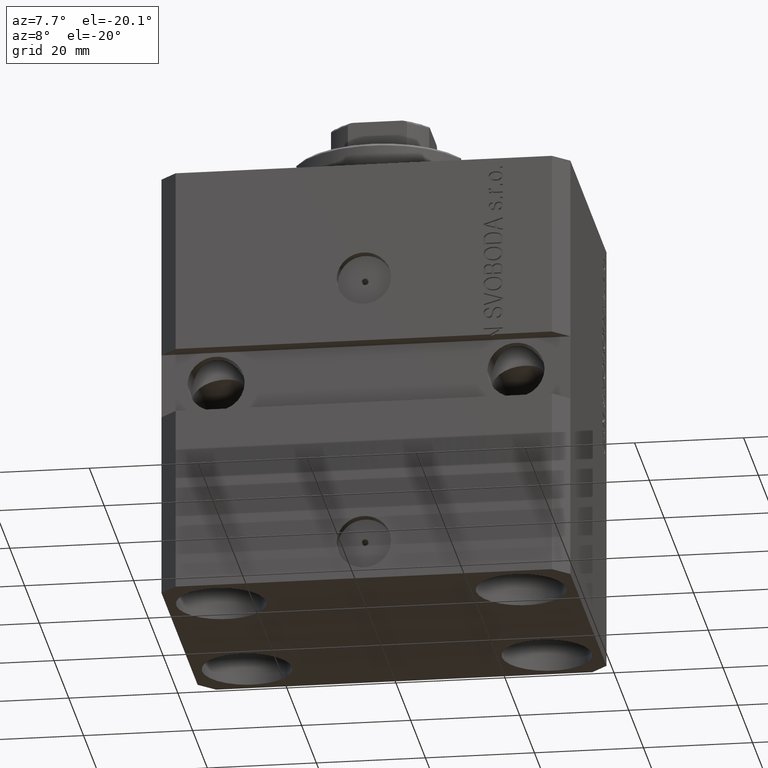
[diagram: clean part render]
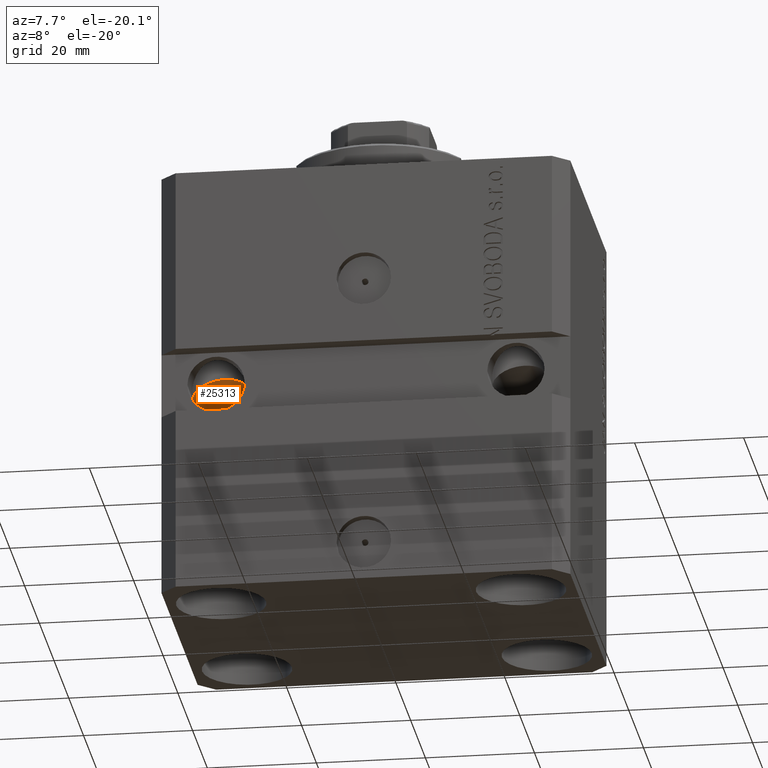
[diagram: same view with one face highlighted and labeled with its STEP entity id]
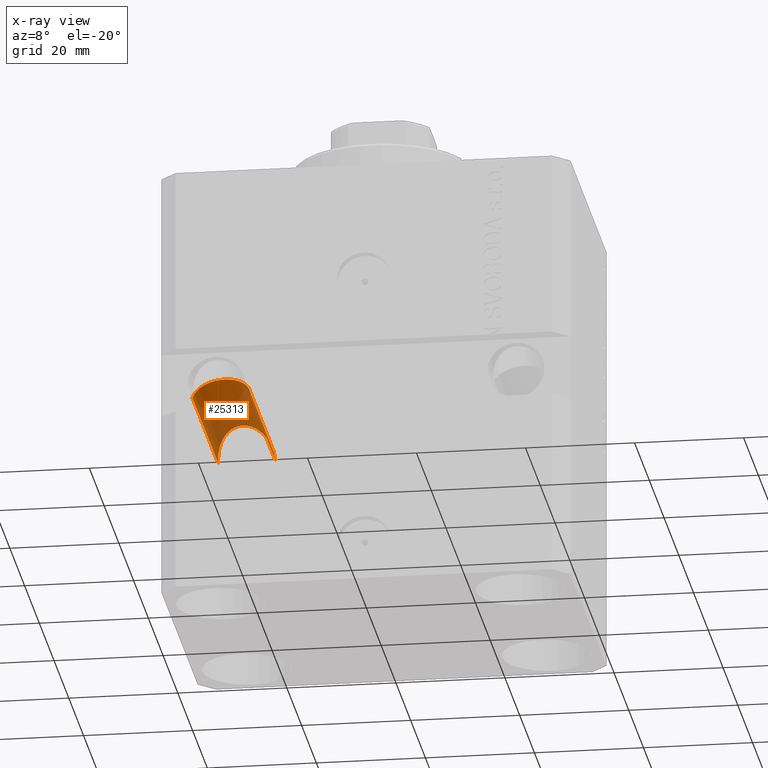
[diagram: x-ray of the same camera — body ghosted, the highlighted face saturated]
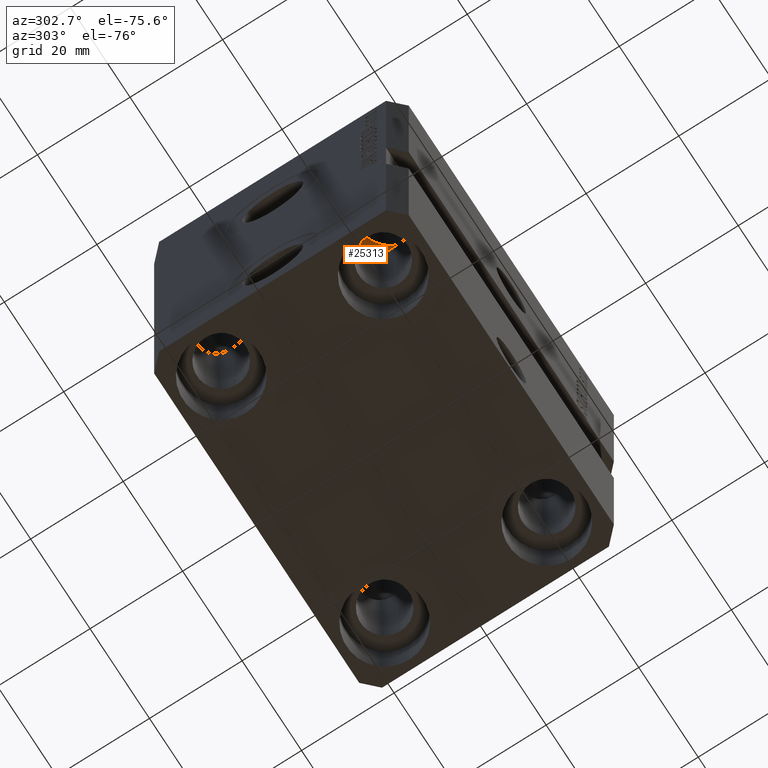
[diagram: same view with one face highlighted and labeled with its STEP entity id]
A machine part, auxiliary view. The second image highlights one B-rep face of the part: STEP entity #25313.
The next image is the same camera in x-ray: the body ghosted, the highlighted face saturated — about 61% of this face is hidden behind the body in this view.
A second angle (auxiliary view) of the same face is appended — the face is thin or edge-on in the first view.
In plain terms, the highlighted cylindrical surface (edge-blend (fillet) strip) has radius 5.25 mm, axis along (0, -1, 0).
Its self-contained STEP definition (entity closure, byte-faithful):
#792 = CARTESIAN_POINT ( 'NONE',  ( -22.25000000000000355, -7.000000000000006217, -29.50000000000001066 ) ) ;
#1235 = EDGE_CURVE ( 'NONE', #38911, #19181, #16449, .T. ) ;
#1542 = CARTESIAN_POINT ( 'NONE',  ( -32.74999999999999289, -17.50000000000000000, -40.00000000000000711 ) ) ;
#1547 = CARTESIAN_POINT ( 'NONE',  ( -22.25000000000000711, 68.50000000000002842, -40.00000000000000711 ) ) ;
#1968 = CARTESIAN_POINT ( 'NONE',  ( -32.75000000000000000, 7.000000000000006217, -29.50000000000001066 ) ) ;
#2202 = EDGE_CURVE ( 'NONE', #7186, #38911, #21477, .T. ) ;
#5101 = AXIS2_PLACEMENT_3D ( 'NONE', #38076, #42098, #21781 ) ;
#7186 = VERTEX_POINT ( 'NONE', #20243 ) ;
#11027 = CARTESIAN_POINT ( 'NONE',  ( -22.25000000000000000, -17.50000000000000000, -40.00000000000000711 ) ) ;
#13750 = ORIENTED_EDGE ( 'NONE', *, *, #14192, .T. ) ;
#14192 = EDGE_CURVE ( 'NONE', #7186, #22958, #39851, .T. ) ;
#16174 = CARTESIAN_POINT ( 'NONE',  ( -22.25000000000000000, -17.50000000000000000, -40.00000000000000711 ) ) ;
#16449 = LINE ( 'NONE', #24031, #39550 ) ;
#16941 = EDGE_LOOP ( 'NONE', ( #40932, #27124, #13750, #36730 ) ) ;
#17011 = VECTOR ( 'NONE', #39624, 1000.000000000000000 ) ;
#18999 = CARTESIAN_POINT ( 'NONE',  ( -32.75000000000000000, 17.50000000000000000, -40.00000000000000711 ) ) ;
#19181 = VERTEX_POINT ( 'NONE', #1542 ) ;
#19312 = CARTESIAN_POINT ( 'NONE',  ( -32.75000000000000000, 17.50000000000000000, -40.00000000000000711 ) ) ;
#19411 = EDGE_CURVE ( 'NONE', #19181, #22958, #19773, .T. ) ;
#19773 =( BOUNDED_CURVE ( )  B_SPLINE_CURVE ( 3, ( #30867, #21040, #792, #11027 ),
 .UNSPECIFIED., .F., .F. ) 
 B_SPLINE_CURVE_WITH_KNOTS ( ( 4, 4 ),
 ( 4.712388980384689674, 7.853981633974482790 ),
 .UNSPECIFIED. ) 
 CURVE ( )  GEOMETRIC_REPRESENTATION_ITEM ( )  RATIONAL_B_SPLINE_CURVE ( ( 1.000000000000000000, 0.3333333333333333703, 0.3333333333333333703, 1.000000000000000000 ) ) 
 REPRESENTATION_ITEM ( '' )  );
#20243 = CARTESIAN_POINT ( 'NONE',  ( -22.25000000000000000, 17.50000000000000000, -40.00000000000000711 ) ) ;
#20906 = CYLINDRICAL_SURFACE ( 'NONE', #5101, 5.249999999999997335 ) ;
#21040 = CARTESIAN_POINT ( 'NONE',  ( -32.74999999999999289, -7.000000000000006217, -29.50000000000001066 ) ) ;
#21477 =( BOUNDED_CURVE ( )  B_SPLINE_CURVE ( 3, ( #32474, #26228, #1968, #19312 ),
 .UNSPECIFIED., .F., .F. ) 
 B_SPLINE_CURVE_WITH_KNOTS ( ( 4, 4 ),
 ( 4.712388980384689674, 7.853981633974482790 ),
 .UNSPECIFIED. ) 
 CURVE ( )  GEOMETRIC_REPRESENTATION_ITEM ( )  RATIONAL_B_SPLINE_CURVE ( ( 1.000000000000000000, 0.3333333333333333703, 0.3333333333333333703, 1.000000000000000000 ) ) 
 REPRESENTATION_ITEM ( '' )  );
#21781 = DIRECTION ( 'NONE',  ( 1.000000000000000000, 0.000000000000000000, 0.000000000000000000 ) ) ;
#22958 = VERTEX_POINT ( 'NONE', #16174 ) ;
#24031 = CARTESIAN_POINT ( 'NONE',  ( -32.75000000000000000, 68.50000000000002842, -40.00000000000000711 ) ) ;
#25313 = ADVANCED_FACE ( 'NONE', ( #38523 ), #20906, .F. ) ;
#26228 = CARTESIAN_POINT ( 'NONE',  ( -22.25000000000000000, 7.000000000000006217, -29.50000000000001066 ) ) ;
#27124 = ORIENTED_EDGE ( 'NONE', *, *, #2202, .F. ) ;
#30055 = DIRECTION ( 'NONE',  ( 1.101411730780568590E-16, -1.000000000000000000, -0.000000000000000000 ) ) ;
#30867 = CARTESIAN_POINT ( 'NONE',  ( -32.74999999999999289, -17.50000000000000000, -40.00000000000000711 ) ) ;
#32474 = CARTESIAN_POINT ( 'NONE',  ( -22.25000000000000000, 17.50000000000000000, -40.00000000000000711 ) ) ;
#36730 = ORIENTED_EDGE ( 'NONE', *, *, #19411, .F. ) ;
#38076 = CARTESIAN_POINT ( 'NONE',  ( -27.50000000000000355, 68.50000000000002842, -40.00000000000000711 ) ) ;
#38523 = FACE_OUTER_BOUND ( 'NONE', #16941, .T. ) ;
#38911 = VERTEX_POINT ( 'NONE', #18999 ) ;
#39550 = VECTOR ( 'NONE', #30055, 1000.000000000000000 ) ;
#39624 = DIRECTION ( 'NONE',  ( 1.101411730780568590E-16, -1.000000000000000000, -0.000000000000000000 ) ) ;
#39851 = LINE ( 'NONE', #1547, #17011 ) ;
#40932 = ORIENTED_EDGE ( 'NONE', *, *, #1235, .F. ) ;
#42098 = DIRECTION ( 'NONE',  ( 1.101411730780568590E-16, -1.000000000000000000, -0.000000000000000000 ) ) ;